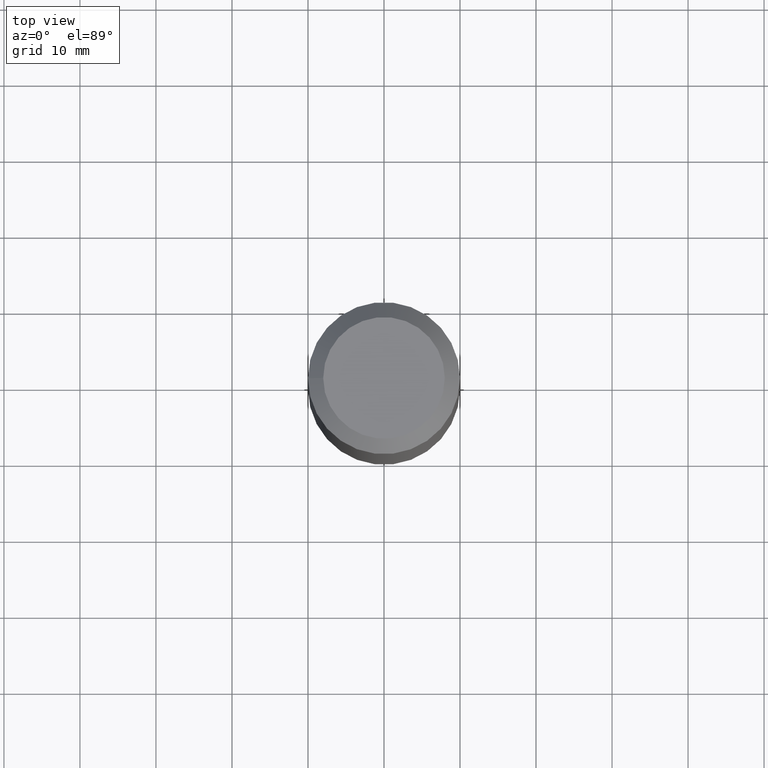
[diagram: clean part render]
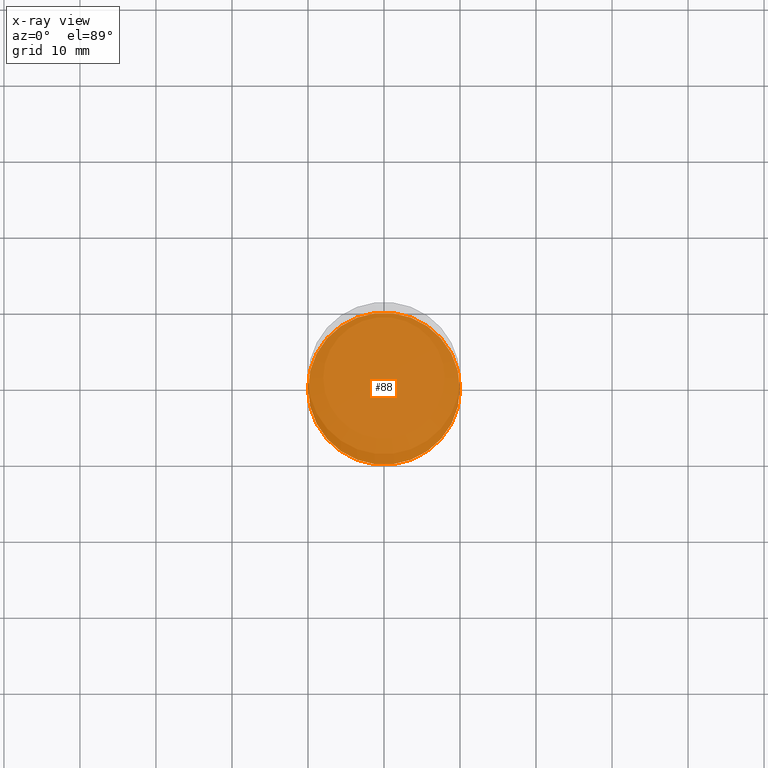
[diagram: x-ray — body ghosted, one internal face saturated and labeled with its STEP entity id]
A machine part, top view, then the same camera in x-ray: the body is ghosted and one INTERNAL B-rep face — a face not visible from any outside direction — is saturated and labeled: STEP entity #88.
In plain terms, the highlighted planar face has unit normal (-0, 0, -1).
Its self-contained STEP definition (entity closure, byte-faithful):
#6 = EDGE_LOOP ( 'NONE', ( #19 ) ) ;
#7 = DIRECTION ( 'NONE',  ( -6.982962677686266711E-15, 0.0000000000000000000, -1.000000000000000000 ) ) ;
#8 = FACE_OUTER_BOUND ( 'NONE', #6, .T. ) ;
#19 = ORIENTED_EDGE ( 'NONE', *, *, #167, .T. ) ;
#88 = ADVANCED_FACE ( 'NONE', ( #8 ), #128, .T. ) ;
#89 = CARTESIAN_POINT ( 'NONE',  ( -5.726029395702741227E-13, 0.0000000000000000000, -82.00000000000002842 ) ) ;
#90 = DIRECTION ( 'NONE',  ( -1.000000000000000000, 0.0000000000000000000, 6.982962677686266711E-15 ) ) ;
#115 = AXIS2_PLACEMENT_3D ( 'NONE', #180, #7, #90 ) ;
#118 = DIRECTION ( 'NONE',  ( 1.000000000000000000, 0.0000000000000000000, -6.938893903907232322E-15 ) ) ;
#128 = PLANE ( 'NONE',  #115 ) ;
#130 = DIRECTION ( 'NONE',  ( -6.982962677686266711E-15, -0.0000000000000000000, -1.000000000000000000 ) ) ;
#140 = AXIS2_PLACEMENT_3D ( 'NONE', #89, #130, #118 ) ;
#143 = CARTESIAN_POINT ( 'NONE',  ( 9.999999999999422684, 0.0000000000000000000, -82.00000000000009948 ) ) ;
#160 = VERTEX_POINT ( 'NONE', #143 ) ;
#167 = EDGE_CURVE ( 'NONE', #160, #160, #169, .T. ) ;
#169 = CIRCLE ( 'NONE', #140, 9.999999999999994671 ) ;
#180 = CARTESIAN_POINT ( 'NONE',  ( -5.726029395702738198E-13, 0.0000000000000000000, -81.99999999999998579 ) ) ;